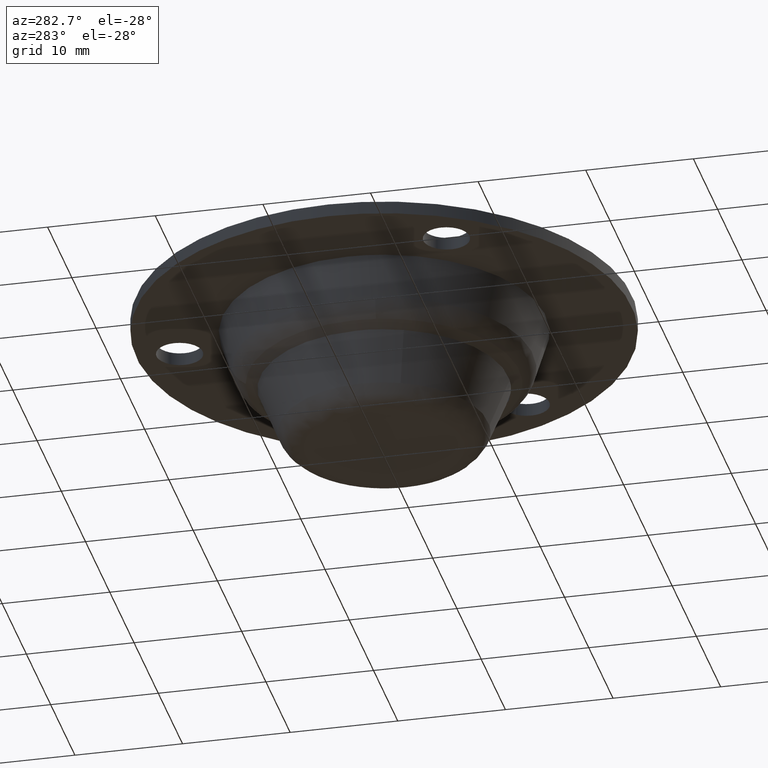
[diagram: clean part render]
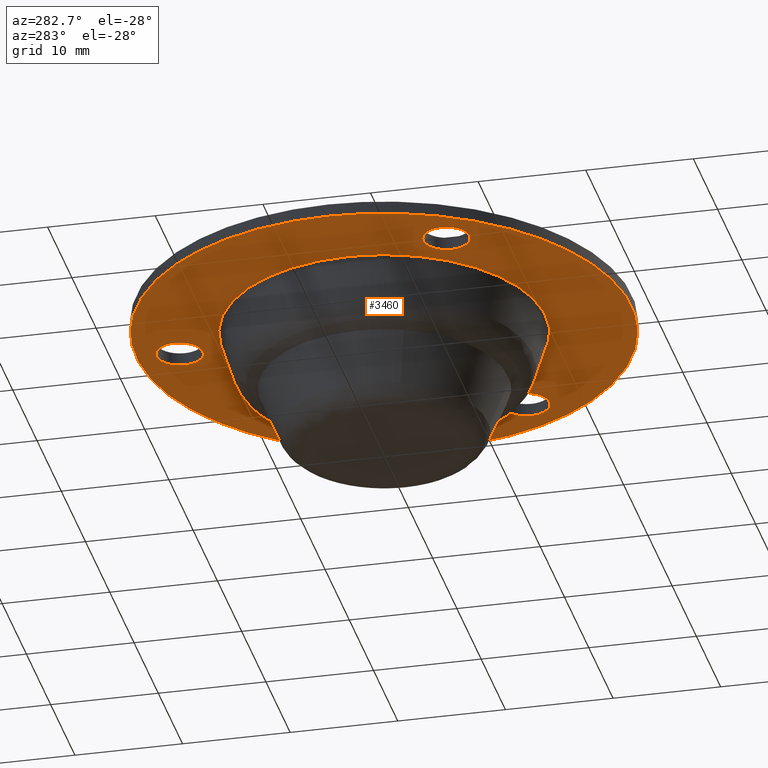
[diagram: same view with one face highlighted and labeled with its STEP entity id]
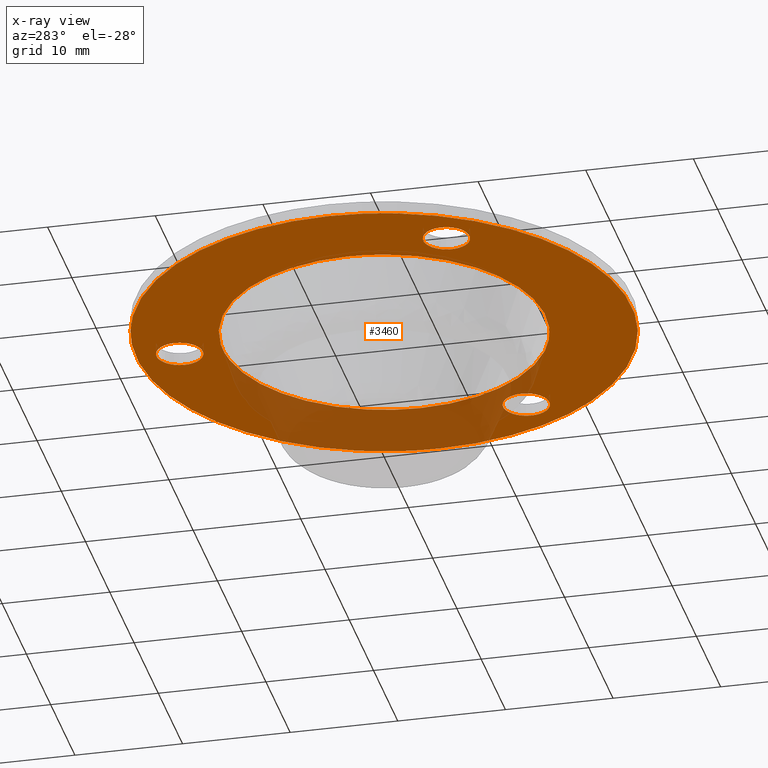
[diagram: x-ray of the same camera — body ghosted, the highlighted face saturated]
A machine part, auxiliary view. The second image highlights one B-rep face of the part: STEP entity #3460.
The next image is the same camera in x-ray: the body ghosted, the highlighted face saturated — about 23% of this face is hidden behind the body in this view.
In plain terms, the highlighted face is a freeform B-spline surface patch.
Its self-contained STEP definition (entity closure, byte-faithful):
#1321=CARTESIAN_POINT('',(-0.253773604618867,16.865029518330822,11.800000000000001));
#1322=VERTEX_POINT('',#1321);
#1323=CARTESIAN_POINT('',(2.149999999999998,19.0,11.800000000000001));
#1324=VERTEX_POINT('',#1323);
#1325=CARTESIAN_POINT('',(-0.253773604618867,16.865029518330818,11.799999999999997));
#1326=CARTESIAN_POINT('',(-0.127331857359572,16.850000000000005,11.799999999999995));
#1327=CARTESIAN_POINT('',(-2.326752E-015,16.850000000000001,11.800000000000001));
#1328=CARTESIAN_POINT('',(2.149999999999999,16.850000000000009,11.799999999999997));
#1329=CARTESIAN_POINT('',(2.149999999999998,19.0,11.800000000000001));
#1337=(BOUNDED_CURVE()B_SPLINE_CURVE(2,(#1325,#1326,#1327,#1328,#1329),.UNSPECIFIED.,.F.,.U.)B_SPLINE_CURVE_WITH_KNOTS((3,2,3),(0.229562473498730,0.250000000000000,0.500000000000000),.UNSPECIFIED.)CURVE()GEOMETRIC_REPRESENTATION_ITEM()RATIONAL_B_SPLINE_CURVE((0.956026754154734,0.976055948313832,1.0,0.707106781186547,1.0))REPRESENTATION_ITEM(''));
#1338=EDGE_CURVE('',#1322,#1324,#1337,.T.);
#1379=CARTESIAN_POINT('',(0.131254360138262,21.145989816598551,11.800000000000001));
#1380=VERTEX_POINT('',#1379);
#1386=CARTESIAN_POINT('',(2.149999999999998,19.0,11.800000000000001));
#1387=CARTESIAN_POINT('',(2.149999999999998,21.022518043586025,11.799999999999997));
#1388=CARTESIAN_POINT('',(0.131254360138262,21.145989816598551,11.799999999999999));
#1396=(BOUNDED_CURVE()B_SPLINE_CURVE(2,(#1386,#1387,#1388),.UNSPECIFIED.,.F.,.U.)B_SPLINE_CURVE_WITH_KNOTS((3,3),(0.500000000000000,0.739332962219725),.UNSPECIFIED.)CURVE()GEOMETRIC_REPRESENTATION_ITEM()RATIONAL_B_SPLINE_CURVE((1.0,0.719603993309225,0.976072041625530))REPRESENTATION_ITEM(''));
#1397=EDGE_CURVE('',#1324,#1380,#1396,.T.);
#1420=CARTESIAN_POINT('',(-2.150000000000002,19.0,11.800000000000001));
#1421=VERTEX_POINT('',#1420);
#1422=CARTESIAN_POINT('',(-2.150000000000002,19.0,11.800000000000001));
#1423=CARTESIAN_POINT('',(-2.150000000000003,17.090424769397014,11.799999999999997));
#1424=CARTESIAN_POINT('',(-0.253773604618867,16.865029518330818,11.799999999999997));
#1432=(BOUNDED_CURVE()B_SPLINE_CURVE(2,(#1422,#1423,#1424),.UNSPECIFIED.,.F.,.U.)B_SPLINE_CURVE_WITH_KNOTS((3,3),(0.0,0.229562473498730),.UNSPECIFIED.)CURVE()GEOMETRIC_REPRESENTATION_ITEM()RATIONAL_B_SPLINE_CURVE((1.0,0.731050832872716,0.956026754154734))REPRESENTATION_ITEM(''));
#1433=EDGE_CURVE('',#1421,#1322,#1432,.T.);
#1435=CARTESIAN_POINT('',(0.131254360138262,21.145989816598554,11.799999999999995));
#1436=CARTESIAN_POINT('',(0.065688441230673,21.149999999999995,11.799999999999997));
#1437=CARTESIAN_POINT('',(-2.326752E-015,21.149999999999999,11.800000000000001));
#1438=CARTESIAN_POINT('',(-2.150000000000003,21.150000000000002,11.799999999999997));
#1439=CARTESIAN_POINT('',(-2.150000000000002,19.0,11.800000000000001));
#1447=(BOUNDED_CURVE()B_SPLINE_CURVE(2,(#1435,#1436,#1437,#1438,#1439),.UNSPECIFIED.,.F.,.U.)B_SPLINE_CURVE_WITH_KNOTS((3,2,3),(0.739332962219725,0.750000000000000,1.0),.UNSPECIFIED.)CURVE()GEOMETRIC_REPRESENTATION_ITEM()RATIONAL_B_SPLINE_CURVE((0.976072041625530,0.987502787877322,1.0,0.707106781186547,1.0))REPRESENTATION_ITEM(''));
#1448=EDGE_CURVE('',#1380,#1421,#1447,.T.);
#1507=CARTESIAN_POINT('',(-16.708256604618860,-11.634970481669180,11.800000000000001));
#1508=VERTEX_POINT('',#1507);
#1509=CARTESIAN_POINT('',(-14.304482999999999,-9.500000000000000,11.800000000000001));
#1510=VERTEX_POINT('',#1509);
#1511=CARTESIAN_POINT('',(-16.708256604618864,-11.634970481669182,11.799999999999997));
#1512=CARTESIAN_POINT('',(-16.581814857359571,-11.650000000000000,11.799999999999995));
#1513=CARTESIAN_POINT('',(-16.454483000000000,-11.650000000000000,11.800000000000001));
#1514=CARTESIAN_POINT('',(-14.304483000000003,-11.650000000000000,11.799999999999997));
#1515=CARTESIAN_POINT('',(-14.304482999999999,-9.500000000000000,11.800000000000001));
#1523=(BOUNDED_CURVE()B_SPLINE_CURVE(2,(#1511,#1512,#1513,#1514,#1515),.UNSPECIFIED.,.F.,.U.)B_SPLINE_CURVE_WITH_KNOTS((3,2,3),(0.229562473498730,0.250000000000000,0.500000000000000),.UNSPECIFIED.)CURVE()GEOMETRIC_REPRESENTATION_ITEM()RATIONAL_B_SPLINE_CURVE((0.956026754154734,0.976055948313832,1.0,0.707106781186547,1.0))REPRESENTATION_ITEM(''));
#1524=EDGE_CURVE('',#1508,#1510,#1523,.T.);
#1565=CARTESIAN_POINT('',(-16.323228639861739,-7.354010183401446,11.800000000000001));
#1566=VERTEX_POINT('',#1565);
#1572=CARTESIAN_POINT('',(-14.304482999999999,-9.500000000000000,11.800000000000001));
#1573=CARTESIAN_POINT('',(-14.304483000000001,-7.477481956413971,11.799999999999997));
#1574=CARTESIAN_POINT('',(-16.323228639861743,-7.354010183401446,11.799999999999999));
#1582=(BOUNDED_CURVE()B_SPLINE_CURVE(2,(#1572,#1573,#1574),.UNSPECIFIED.,.F.,.U.)B_SPLINE_CURVE_WITH_KNOTS((3,3),(0.500000000000000,0.739332962219725),.UNSPECIFIED.)CURVE()GEOMETRIC_REPRESENTATION_ITEM()RATIONAL_B_SPLINE_CURVE((1.0,0.719603993309225,0.976072041625530))REPRESENTATION_ITEM(''));
#1583=EDGE_CURVE('',#1510,#1566,#1582,.T.);
#1606=CARTESIAN_POINT('',(-18.604482999999998,-9.500000000000000,11.800000000000001));
#1607=VERTEX_POINT('',#1606);
#1608=CARTESIAN_POINT('',(-18.604482999999998,-9.500000000000000,11.800000000000001));
#1609=CARTESIAN_POINT('',(-18.604482999999995,-11.409575230602986,11.799999999999997));
#1610=CARTESIAN_POINT('',(-16.708256604618864,-11.634970481669182,11.799999999999997));
#1618=(BOUNDED_CURVE()B_SPLINE_CURVE(2,(#1608,#1609,#1610),.UNSPECIFIED.,.F.,.U.)B_SPLINE_CURVE_WITH_KNOTS((3,3),(0.0,0.229562473498730),.UNSPECIFIED.)CURVE()GEOMETRIC_REPRESENTATION_ITEM()RATIONAL_B_SPLINE_CURVE((1.0,0.731050832872716,0.956026754154734))REPRESENTATION_ITEM(''));
#1619=EDGE_CURVE('',#1607,#1508,#1618,.T.);
#1621=CARTESIAN_POINT('',(-16.323228639861743,-7.354010183401446,11.799999999999999));
#1622=CARTESIAN_POINT('',(-16.388794558769320,-7.350000000000001,11.799999999999999));
#1623=CARTESIAN_POINT('',(-16.454483000000000,-7.350000000000000,11.800000000000001));
#1624=CARTESIAN_POINT('',(-18.604482999999998,-7.350000000000000,11.799999999999997));
#1625=CARTESIAN_POINT('',(-18.604482999999998,-9.500000000000000,11.800000000000001));
#1633=(BOUNDED_CURVE()B_SPLINE_CURVE(2,(#1621,#1622,#1623,#1624,#1625),.UNSPECIFIED.,.F.,.U.)B_SPLINE_CURVE_WITH_KNOTS((3,2,3),(0.739332962219725,0.750000000000000,1.0),.UNSPECIFIED.)CURVE()GEOMETRIC_REPRESENTATION_ITEM()RATIONAL_B_SPLINE_CURVE((0.976072041625530,0.987502787877322,1.0,0.707106781186547,1.0))REPRESENTATION_ITEM(''));
#1634=EDGE_CURVE('',#1566,#1607,#1633,.T.);
#1693=CARTESIAN_POINT('',(16.200709395381139,-11.634970481669191,11.800000000000001));
#1694=VERTEX_POINT('',#1693);
#1695=CARTESIAN_POINT('',(18.604482999999998,-9.500000000000000,11.800000000000001));
#1696=VERTEX_POINT('',#1695);
#1697=CARTESIAN_POINT('',(16.200709395381136,-11.634970481669182,11.799999999999997));
#1698=CARTESIAN_POINT('',(16.327151142640435,-11.650000000000000,11.799999999999995));
#1699=CARTESIAN_POINT('',(16.454483000000000,-11.650000000000000,11.800000000000001));
#1700=CARTESIAN_POINT('',(18.604482999999998,-11.650000000000000,11.799999999999997));
#1701=CARTESIAN_POINT('',(18.604482999999998,-9.500000000000000,11.800000000000001));
#1709=(BOUNDED_CURVE()B_SPLINE_CURVE(2,(#1697,#1698,#1699,#1700,#1701),.UNSPECIFIED.,.F.,.U.)B_SPLINE_CURVE_WITH_KNOTS((3,2,3),(0.229562473498730,0.250000000000000,0.500000000000000),.UNSPECIFIED.)CURVE()GEOMETRIC_REPRESENTATION_ITEM()RATIONAL_B_SPLINE_CURVE((0.956026754154734,0.976055948313832,1.0,0.707106781186547,1.0))REPRESENTATION_ITEM(''));
#1710=EDGE_CURVE('',#1694,#1696,#1709,.T.);
#1751=CARTESIAN_POINT('',(16.585737360138260,-7.354010183401446,11.800000000000001));
#1752=VERTEX_POINT('',#1751);
#1758=CARTESIAN_POINT('',(18.604482999999998,-9.500000000000000,11.800000000000001));
#1759=CARTESIAN_POINT('',(18.604483000000002,-7.477481956413971,11.799999999999997));
#1760=CARTESIAN_POINT('',(16.585737360138264,-7.354010183401446,11.799999999999999));
#1768=(BOUNDED_CURVE()B_SPLINE_CURVE(2,(#1758,#1759,#1760),.UNSPECIFIED.,.F.,.U.)B_SPLINE_CURVE_WITH_KNOTS((3,3),(0.500000000000000,0.739332962219725),.UNSPECIFIED.)CURVE()GEOMETRIC_REPRESENTATION_ITEM()RATIONAL_B_SPLINE_CURVE((1.0,0.719603993309225,0.976072041625530))REPRESENTATION_ITEM(''));
#1769=EDGE_CURVE('',#1696,#1752,#1768,.T.);
#1792=CARTESIAN_POINT('',(14.304482999999999,-9.500000000000000,11.800000000000001));
#1793=VERTEX_POINT('',#1792);
#1794=CARTESIAN_POINT('',(14.304482999999999,-9.500000000000000,11.800000000000001));
#1795=CARTESIAN_POINT('',(14.304482999999996,-11.409575230602988,11.799999999999997));
#1796=CARTESIAN_POINT('',(16.200709395381132,-11.634970481669189,11.799999999999995));
#1804=(BOUNDED_CURVE()B_SPLINE_CURVE(2,(#1794,#1795,#1796),.UNSPECIFIED.,.F.,.U.)B_SPLINE_CURVE_WITH_KNOTS((3,3),(0.0,0.229562473498731),.UNSPECIFIED.)CURVE()GEOMETRIC_REPRESENTATION_ITEM()RATIONAL_B_SPLINE_CURVE((1.0,0.731050832872716,0.956026754154734))REPRESENTATION_ITEM(''));
#1805=EDGE_CURVE('',#1793,#1694,#1804,.T.);
#1807=CARTESIAN_POINT('',(16.585737360138268,-7.354010183401446,11.799999999999995));
#1808=CARTESIAN_POINT('',(16.520171441230673,-7.350000000000001,11.799999999999997));
#1809=CARTESIAN_POINT('',(16.454483000000000,-7.350000000000000,11.800000000000001));
#1810=CARTESIAN_POINT('',(14.304483000000003,-7.350000000000000,11.799999999999997));
#1811=CARTESIAN_POINT('',(14.304482999999999,-9.500000000000000,11.800000000000001));
#1819=(BOUNDED_CURVE()B_SPLINE_CURVE(2,(#1807,#1808,#1809,#1810,#1811),.UNSPECIFIED.,.F.,.U.)B_SPLINE_CURVE_WITH_KNOTS((3,2,3),(0.739332962219725,0.750000000000000,1.0),.UNSPECIFIED.)CURVE()GEOMETRIC_REPRESENTATION_ITEM()RATIONAL_B_SPLINE_CURVE((0.976072041625530,0.987502787877322,1.0,0.707106781186547,1.0))REPRESENTATION_ITEM(''));
#1820=EDGE_CURVE('',#1752,#1793,#1819,.T.);
#1879=CARTESIAN_POINT('',(-2.714772836399791,22.839220837115491,11.800000000000431));
#1880=VERTEX_POINT('',#1879);
#1881=CARTESIAN_POINT('',(23.0,0.0,11.800000000000001));
#1882=VERTEX_POINT('',#1881);
#1883=CARTESIAN_POINT('',(-2.714772836399791,22.839220837115491,11.800000000000432));
#1884=CARTESIAN_POINT('',(-1.362147394674841,22.999999999999993,11.799999999999995));
#1885=CARTESIAN_POINT('',(0.0,23.0,11.800000000000001));
#1886=CARTESIAN_POINT('',(22.999999999999993,22.999999999999993,11.799999999999999));
#1887=CARTESIAN_POINT('',(23.0,0.0,11.800000000000001));
#1895=(BOUNDED_CURVE()B_SPLINE_CURVE(2,(#1883,#1884,#1885,#1886,#1887),.UNSPECIFIED.,.F.,.U.)B_SPLINE_CURVE_WITH_KNOTS((3,2,3),(0.229562581260426,0.250000000000000,0.500000000000000),.UNSPECIFIED.)CURVE()GEOMETRIC_REPRESENTATION_ITEM()RATIONAL_B_SPLINE_CURVE((0.956026965372175,0.976056074564511,1.0,0.707106781186548,1.0))REPRESENTATION_ITEM(''));
#1896=EDGE_CURVE('',#1880,#1882,#1895,.T.);
#1937=CARTESIAN_POINT('',(1.404108171705139,-22.957100867532962,11.800000000000280));
#1938=VERTEX_POINT('',#1937);
#1944=CARTESIAN_POINT('',(23.0,0.0,11.800000000000001));
#1945=CARTESIAN_POINT('',(23.0,-21.636247316977752,11.799999999999997));
#1946=CARTESIAN_POINT('',(1.404108171705139,-22.957100867532954,11.800000000000283));
#1954=(BOUNDED_CURVE()B_SPLINE_CURVE(2,(#1944,#1945,#1946),.UNSPECIFIED.,.F.,.U.)B_SPLINE_CURVE_WITH_KNOTS((3,3),(0.500000000000000,0.739333024156186),.UNSPECIFIED.)CURVE()GEOMETRIC_REPRESENTATION_ITEM()RATIONAL_B_SPLINE_CURVE((1.0,0.719603920746148,0.976072174367192))REPRESENTATION_ITEM(''));
#1955=EDGE_CURVE('',#1882,#1938,#1954,.T.);
#1978=CARTESIAN_POINT('',(-23.0,0.0,11.800000000000001));
#1979=VERTEX_POINT('',#1978);
#1980=CARTESIAN_POINT('',(-23.0,0.0,11.800000000000001));
#1981=CARTESIAN_POINT('',(-23.0,20.428027212053621,11.799999999999999));
#1982=CARTESIAN_POINT('',(-2.714772836399791,22.839220837115491,11.800000000000432));
#1990=(BOUNDED_CURVE()B_SPLINE_CURVE(2,(#1980,#1981,#1982),.UNSPECIFIED.,.F.,.U.)B_SPLINE_CURVE_WITH_KNOTS((3,3),(0.0,0.229562581260426),.UNSPECIFIED.)CURVE()GEOMETRIC_REPRESENTATION_ITEM()RATIONAL_B_SPLINE_CURVE((1.0,0.731050706622037,0.956026965372175))REPRESENTATION_ITEM(''));
#1991=EDGE_CURVE('',#1979,#1880,#1990,.T.);
#1993=CARTESIAN_POINT('',(1.404108171705139,-22.957100867532954,11.800000000000283));
#1994=CARTESIAN_POINT('',(0.702709425520667,-23.000000000000004,11.800000000000001));
#1995=CARTESIAN_POINT('',(0.0,-23.0,11.800000000000001));
#1996=CARTESIAN_POINT('',(-22.999999999999993,-22.999999999999993,11.799999999999999));
#1997=CARTESIAN_POINT('',(-23.0,0.0,11.800000000000001));
#2005=(BOUNDED_CURVE()B_SPLINE_CURVE(2,(#1993,#1994,#1995,#1996,#1997),.UNSPECIFIED.,.F.,.U.)B_SPLINE_CURVE_WITH_KNOTS((3,2,3),(0.739333024156186,0.750000000000000,1.0),.UNSPECIFIED.)CURVE()GEOMETRIC_REPRESENTATION_ITEM()RATIONAL_B_SPLINE_CURVE((0.976072174367192,0.987502860440400,1.0,0.707106781186548,1.0))REPRESENTATION_ITEM(''));
#2006=EDGE_CURVE('',#1938,#1979,#2005,.T.);
#2150=CARTESIAN_POINT('',(2.475713979554878,-14.794284011547949,11.799999906443441));
#2151=VERTEX_POINT('',#2150);
#2157=CARTESIAN_POINT('',(-15.0,0.0,11.800000000000001));
#2158=VERTEX_POINT('',#2157);
#2159=CARTESIAN_POINT('',(2.475713979554877,-14.794284011547948,11.799999906443436));
#2160=CARTESIAN_POINT('',(1.246403778014197,-15.0,11.799999999999997));
#2161=CARTESIAN_POINT('',(0.0,-15.0,11.800000000000001));
#2162=CARTESIAN_POINT('',(-14.999999999999996,-14.999999999999996,11.799999999999997));
#2163=CARTESIAN_POINT('',(-15.0,0.0,11.800000000000001));
#2171=(BOUNDED_CURVE()B_SPLINE_CURVE(2,(#2159,#2160,#2161,#2162,#2163),.UNSPECIFIED.,.F.,.U.)B_SPLINE_CURVE_WITH_KNOTS((3,2,3),(0.721599484086802,0.750000000000000,1.0),.UNSPECIFIED.)CURVE()GEOMETRIC_REPRESENTATION_ITEM()RATIONAL_B_SPLINE_CURVE((0.941013277027330,0.966726725912883,1.0,0.707106781186547,1.0))REPRESENTATION_ITEM(''));
#2172=EDGE_CURVE('',#2151,#2158,#2171,.T.);
#2174=CARTESIAN_POINT('',(15.0,0.0,11.800000000000001));
#2175=VERTEX_POINT('',#2174);
#2176=CARTESIAN_POINT('',(-15.0,0.0,11.800000000000001));
#2177=CARTESIAN_POINT('',(-14.999999999999996,14.999999999999996,11.799999999999997));
#2178=CARTESIAN_POINT('',(0.0,15.0,11.800000000000001));
#2179=CARTESIAN_POINT('',(14.999999999999996,14.999999999999996,11.799999999999997));
#2180=CARTESIAN_POINT('',(15.0,0.0,11.800000000000001));
#2188=(BOUNDED_CURVE()B_SPLINE_CURVE(2,(#2176,#2177,#2178,#2179,#2180),.UNSPECIFIED.,.F.,.U.)B_SPLINE_CURVE_WITH_KNOTS((3,2,3),(0.0,0.250000000000000,0.500000000000000),.UNSPECIFIED.)CURVE()GEOMETRIC_REPRESENTATION_ITEM()RATIONAL_B_SPLINE_CURVE((1.0,0.707106781186547,1.0,0.707106781186547,1.0))REPRESENTATION_ITEM(''));
#2189=EDGE_CURVE('',#2158,#2175,#2188,.T.);
#2191=CARTESIAN_POINT('',(11.287747654159199,-9.878600755978724,11.800000000000001));
#2192=VERTEX_POINT('',#2191);
#2193=CARTESIAN_POINT('',(15.0,0.0,11.800000000000001));
#2194=CARTESIAN_POINT('',(14.999999999999996,-5.636808953323797,11.799999999999995));
#2195=CARTESIAN_POINT('',(11.287747654159187,-9.878600755978741,11.800000000000002));
#2203=(BOUNDED_CURVE()B_SPLINE_CURVE(2,(#2193,#2194,#2195),.UNSPECIFIED.,.F.,.U.)B_SPLINE_CURVE_WITH_KNOTS((3,3),(0.500000000000000,0.614965734048620),.UNSPECIFIED.)CURVE()GEOMETRIC_REPRESENTATION_ITEM()RATIONAL_B_SPLINE_CURVE((1.0,0.865309264404994,0.854497083107815))REPRESENTATION_ITEM(''));
#2204=EDGE_CURVE('',#2175,#2192,#2203,.T.);
#2242=CARTESIAN_POINT('',(11.287747654159196,-9.878600755978724,11.800000000000002));
#2243=CARTESIAN_POINT('',(7.759560166069883,-13.910071510377897,11.799999999999999));
#2244=CARTESIAN_POINT('',(2.475713979554877,-14.794284011547951,11.799999906443437));
#2252=(BOUNDED_CURVE()B_SPLINE_CURVE(2,(#2242,#2243,#2244),.UNSPECIFIED.,.F.,.U.)B_SPLINE_CURVE_WITH_KNOTS((3,3),(0.614965734048620,0.721599484086803),.UNSPECIFIED.)CURVE()GEOMETRIC_REPRESENTATION_ITEM()RATIONAL_B_SPLINE_CURVE((0.854497083107815,0.844468499831660,0.941013277027331))REPRESENTATION_ITEM(''));
#2253=EDGE_CURVE('',#2192,#2151,#2252,.T.);
#3425=CARTESIAN_POINT('',(25.297699910843079,-25.297140543101730,11.800000000000001));
#3426=CARTESIAN_POINT('',(-25.297701144659221,-25.297140543101730,11.800000000000001));
#3427=CARTESIAN_POINT('',(25.297699910843079,25.297281609414519,11.800000000000001));
#3428=CARTESIAN_POINT('',(-25.297701144659221,25.297281609414519,11.800000000000001));
#3429=B_SPLINE_SURFACE_WITH_KNOTS('',1,1,((#3425,#3427),(#3426,#3428)),.UNSPECIFIED.,.F.,.F.,.U.,(2,2),(2,2),(0.0,50.595401055502293),(0.0,50.594422152516252),.UNSPECIFIED.);
#3430=ORIENTED_EDGE('',*,*,#1896,.T.);
#3431=ORIENTED_EDGE('',*,*,#1955,.T.);
#3432=ORIENTED_EDGE('',*,*,#2006,.T.);
#3433=ORIENTED_EDGE('',*,*,#1991,.T.);
#3434=EDGE_LOOP('',(#3430,#3431,#3432,#3433));
#3435=FACE_OUTER_BOUND('',#3434,.T.);
#3436=ORIENTED_EDGE('',*,*,#2189,.F.);
#3437=ORIENTED_EDGE('',*,*,#2172,.F.);
#3438=ORIENTED_EDGE('',*,*,#2253,.F.);
#3439=ORIENTED_EDGE('',*,*,#2204,.F.);
#3440=EDGE_LOOP('',(#3436,#3437,#3438,#3439));
#3441=FACE_BOUND('',#3440,.T.);
#3442=ORIENTED_EDGE('',*,*,#1769,.T.);
#3443=ORIENTED_EDGE('',*,*,#1820,.T.);
#3444=ORIENTED_EDGE('',*,*,#1805,.T.);
#3445=ORIENTED_EDGE('',*,*,#1710,.T.);
#3446=EDGE_LOOP('',(#3442,#3443,#3444,#3445));
#3447=FACE_BOUND('',#3446,.T.);
#3448=ORIENTED_EDGE('',*,*,#1583,.T.);
#3449=ORIENTED_EDGE('',*,*,#1634,.T.);
#3450=ORIENTED_EDGE('',*,*,#1619,.T.);
#3451=ORIENTED_EDGE('',*,*,#1524,.T.);
#3452=EDGE_LOOP('',(#3448,#3449,#3450,#3451));
#3453=FACE_BOUND('',#3452,.T.);
#3454=ORIENTED_EDGE('',*,*,#1397,.T.);
#3455=ORIENTED_EDGE('',*,*,#1448,.T.);
#3456=ORIENTED_EDGE('',*,*,#1433,.T.);
#3457=ORIENTED_EDGE('',*,*,#1338,.T.);
#3458=EDGE_LOOP('',(#3454,#3455,#3456,#3457));
#3459=FACE_BOUND('',#3458,.T.);
#3460=ADVANCED_FACE('',(#3435,#3441,#3447,#3453,#3459),#3429,.T.);